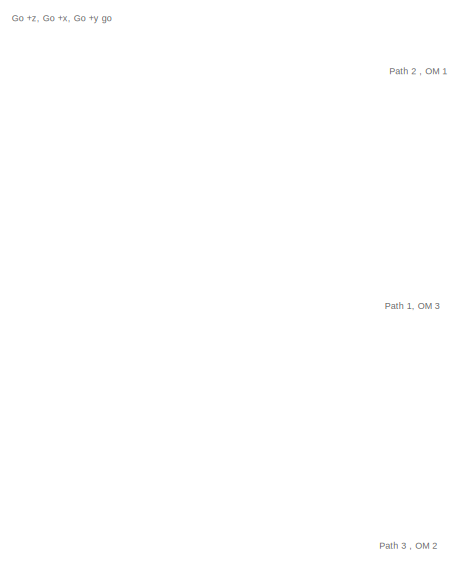
[diagram: root canvas - part 1/3, top left region]
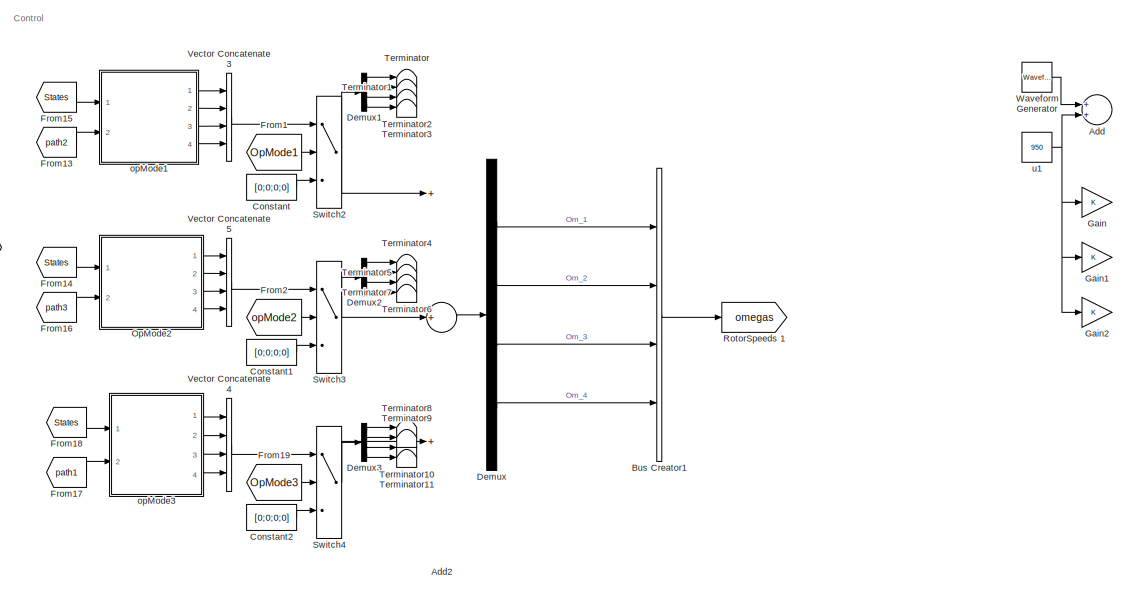
[diagram: root canvas - part 2/3, middle right region]
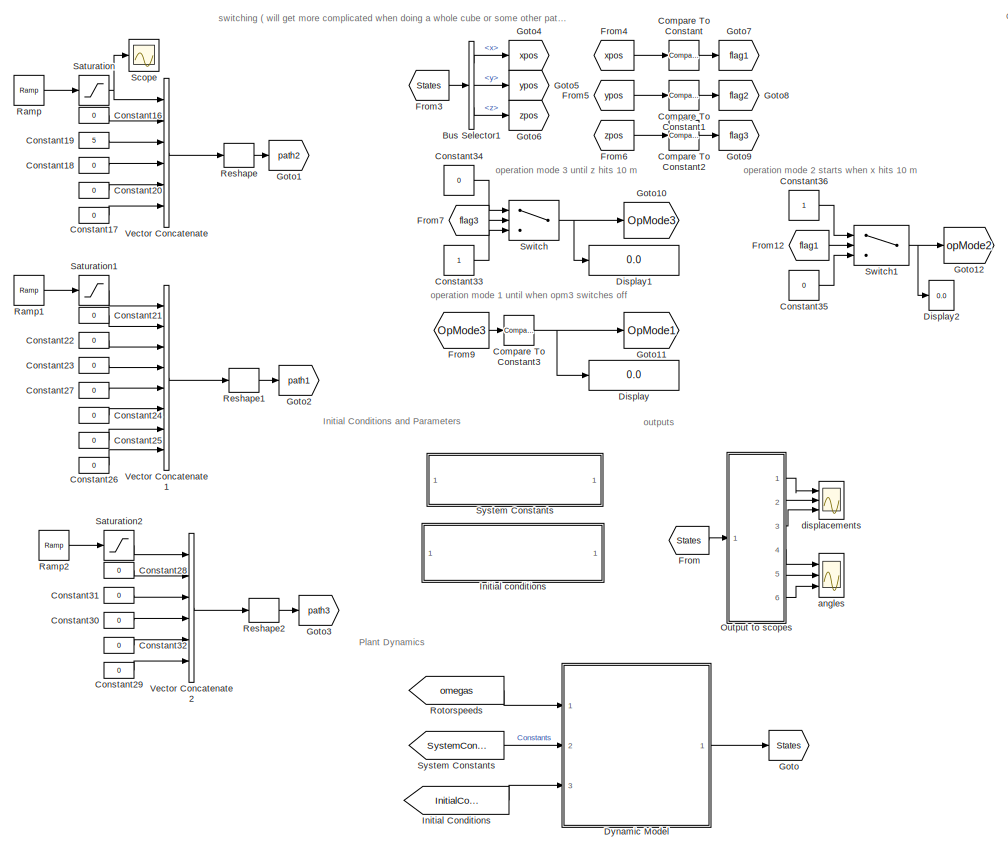
[diagram: root canvas - part 3/3, center side, full height]
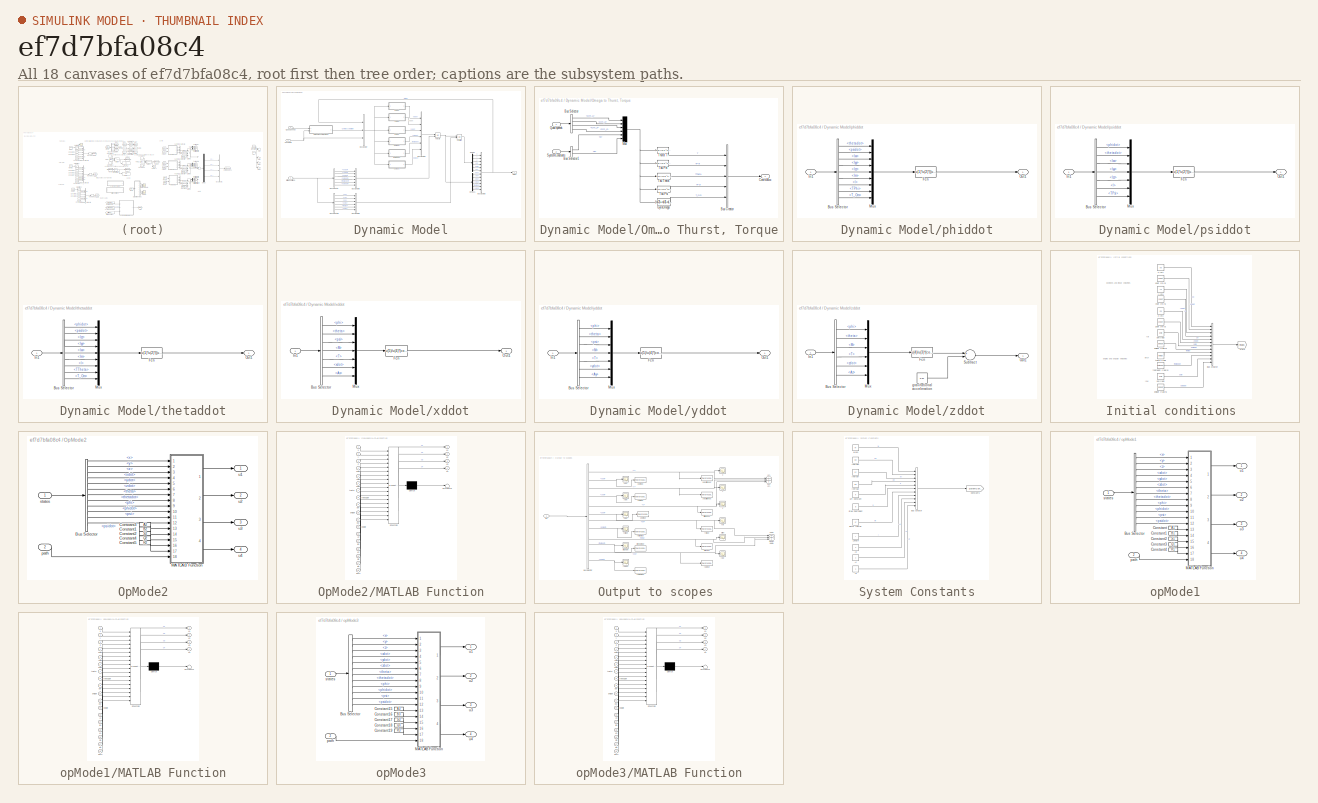
[diagram: thumbnail index - all 18 canvases of the model, root first then tree order]
MODEL slx_ef7d7bfa08c4
KIND model
CONFIG AbsTol = auto
CONFIG EnableMultiTasking = off
CONFIG FixedStep = auto
CONFIG MaxStep = auto
CONFIG MinStep = auto
CONFIG RelTol = 1e-3
CONFIG SampleTimeConstraint = Unconstrained
CONFIG Solver = VariableStepAuto
CONFIG SolverName = VariableStepAuto
CONFIG StartTime = 0.0
CONFIG StopTime = 100
BLOCK [Sum] Add
  Commented = on
  InputSameDT = off
  OutDataTypeStr = Inherit: Inherit via internal rule
  Ports = [2, 1]
  SaturateOnIntegerOverflow = off
BLOCK [Sum] Add2
  InputSameDT = off
  Inputs = +++
  OutDataTypeStr = Inherit: Inherit via internal rule
  Ports = [3, 1]
  SaturateOnIntegerOverflow = off
BLOCK [BusCreator] Bus Creator1
  DisplayOption = bar
  InheritFromInputs = on
  Inputs = 4
  Ports = [4, 1]
BLOCK [BusSelector] Bus Selector1
  OutputAsBus = off
  OutputSignals = x,y,z
  Ports = [1, 3]
BLOCK [Reference] Compare To Constant  REF=simulink/Logic and Bit
Operations/Compare
To Constant
  Ports = [1, 1]
  SourceBlock = simulink/Logic and Bit\nOperations/Compare\nTo Constant
  SourceProductBaseCode = SL
  SourceProductName = Simulink
  SourceType = Compare To Constant
BLOCK [Reference] Compare To Constant1  REF=simulink/Logic and Bit
Operations/Compare
To Constant
  Ports = [1, 1]
  SourceBlock = simulink/Logic and Bit\nOperations/Compare\nTo Constant
  SourceProductBaseCode = SL
  SourceProductName = Simulink
  SourceType = Compare To Constant
BLOCK [Reference] Compare To Constant2  REF=simulink/Logic and Bit
Operations/Compare
To Constant
  Ports = [1, 1]
  SourceBlock = simulink/Logic and Bit\nOperations/Compare\nTo Constant
  SourceProductBaseCode = SL
  SourceProductName = Simulink
  SourceType = Compare To Constant
BLOCK [Reference] Compare To Constant3  REF=simulink/Logic and Bit
Operations/Compare
To Constant
  Ports = [1, 1]
  SourceBlock = simulink/Logic and Bit\nOperations/Compare\nTo Constant
  SourceProductBaseCode = SL
  SourceProductName = Simulink
  SourceType = Compare To Constant
BLOCK [Constant] Constant
  Value = [0;0;0;0]
BLOCK [Constant] Constant1
  Value = [0;0;0;0]
BLOCK [Constant] Constant16
  Value = 0
BLOCK [Constant] Constant17
  Value = 0
BLOCK [Constant] Constant18
  Value = 0
BLOCK [Constant] Constant19
  Value = 5
BLOCK [Constant] Constant2
  Value = [0;0;0;0]
BLOCK [Constant] Constant20
  Value = 0
BLOCK [Constant] Constant21
  Value = 0
BLOCK [Constant] Constant22
  Value = 0
BLOCK [Constant] Constant23
  Value = 0
BLOCK [Constant] Constant24
  Value = 0
BLOCK [Constant] Constant25
  Value = 0
BLOCK [Constant] Constant26
  Value = 0
BLOCK [Constant] Constant27
  Value = 0
BLOCK [Constant] Constant28
  Value = 0
BLOCK [Constant] Constant29
  Value = 0
BLOCK [Constant] Constant30
  Value = 0
BLOCK [Constant] Constant31
  Value = 0
BLOCK [Constant] Constant32
  Value = 0
BLOCK [Constant] Constant33
BLOCK [Constant] Constant34
  Value = 0
BLOCK [Constant] Constant35
  Value = 0
BLOCK [Constant] Constant36
BLOCK [Demux] Demux
  DisplayOption = bar
  Ports = [1, 4]
BLOCK [Demux] Demux1
  DisplayOption = bar
  Ports = [1, 4]
BLOCK [Demux] Demux2
  DisplayOption = bar
  Ports = [1, 4]
BLOCK [Demux] Demux3
  DisplayOption = bar
  Ports = [1, 4]
BLOCK [Display] Display
  Decimation = 1
  Ports = [1]
BLOCK [Display] Display1
  Decimation = 1
  Ports = [1]
BLOCK [Display] Display2
  Decimation = 1
  Ports = [1]
BLOCK [SubSystem] Dynamic Model
  Ports = [3, 1]
  RequestExecContextInheritance = off
BLOCK [BusCreator] Dynamic Model/Bus Creator
  DisplayOption = bar
  InheritFromInputs = on
  Inputs = 3
  Ports = [3, 1]
BLOCK [BusCreator] Dynamic Model/Bus Creator3
  DisplayOption = bar
  InheritFromInputs = on
  Inputs = 12
  Ports = [12, 1]
BLOCK [BusCreator] Dynamic Model/Bus Creator4
  DisplayOption = bar
  InheritFromInputs = on
  Inputs = 6
  Ports = [6, 1]
BLOCK [BusCreator] Dynamic Model/Bus Creator5
  DisplayOption = bar
  InheritFromInputs = on
  Inputs = 6
  Ports = [6, 1]
BLOCK [BusCreator] Dynamic Model/Bus Creator6
  DisplayOption = bar
  InheritFromInputs = on
  Inputs = 6
  Ports = [6, 1]
BLOCK [BusSelector] Dynamic Model/Bus Selector
  OutputAsBus = off
  OutputSignals = x0dot,y0dot,z0dot,phi0dot,theta0dot,psi0dot
  Ports = [1, 6]
BLOCK [BusSelector] Dynamic Model/Bus Selector1
  OutputAsBus = off
  OutputSignals = x0,y0,z0,phi0,theta0,psi0
  Ports = [1, 6]
BLOCK [Inport] Dynamic Model/Constants
  IconDisplay = Port number
  Port = 2
BLOCK [Demux] Dynamic Model/Demux
  DisplayOption = bar
  Outputs = 6
  Ports = [1, 6]
BLOCK [Demux] Dynamic Model/Demux1
  DisplayOption = bar
  Outputs = 6
  Ports = [1, 6]
BLOCK [Inport] Dynamic Model/Initial Conditions 
  IconDisplay = Port number
  Port = 3
BLOCK [SubSystem] Dynamic Model/Omega to Thurst, Torque
  Ports = [2, 1]
  RequestExecContextInheritance = off
BLOCK [BusCreator] Dynamic Model/Omega to Thurst, Torque/Bus Creator
  DisplayOption = bar
  InheritFromInputs = on
  Inputs = 5
  Ports = [5, 1]
BLOCK [BusSelector] Dynamic Model/Omega to Thurst, Torque/Bus Selector
  OutputAsBus = off
  OutputSignals = Om_1,Om_2,Om_3,Om_4
  Ports = [1, 4]
BLOCK [BusSelector] Dynamic Model/Omega to Thurst, Torque/Bus Selector1
  OutputAsBus = off
  OutputSignals = k,b
  Ports = [1, 2]
BLOCK [Outport] Dynamic Model/Omega to Thurst, Torque/ControlAcc
  IconDisplay = Port number
BLOCK [Fcn] Dynamic Model/Omega to Thurst, Torque/GyroOmega 
  Expr = (u(2)+u(4)-u(1)-u(3))
BLOCK [Mux] Dynamic Model/Omega to Thurst, Torque/Mux
  DisplayOption = bar
  Inputs = 6
  Ports = [6, 1]
BLOCK [Inport] Dynamic Model/Omega to Thurst, Torque/Quad speeds 
  IconDisplay = Port number
BLOCK [Inport] Dynamic Model/Omega to Thurst, Torque/SystemConstants
  IconDisplay = Port number
  Port = 2
BLOCK [Fcn] Dynamic Model/Omega to Thurst, Torque/Tau Phi
  Expr = u(5)*(u(4)^2-u(2)^2)
BLOCK [Fcn] Dynamic Model/Omega to Thurst, Torque/Tau Psi
  Expr = u(6)*(u(2)^2+u(4)^2-u(1)^2-u(3)^2)
BLOCK [Fcn] Dynamic Model/Omega to Thurst, Torque/Tau Theta 
  Expr = u(5)*(u(3)^2-u(1)^2)
BLOCK [Fcn] Dynamic Model/Omega to Thurst, Torque/Thurst T
  Expr = u(5)*(u(1)^2+u(2)^2+u(3)^2+u(4)^2)
BLOCK [Integrator] Dynamic Model/Position
  InitialConditionSource = external
  Ports = [2, 1]
BLOCK [Inport] Dynamic Model/Quad Speeds 
  IconDisplay = Port number
BLOCK [Outport] Dynamic Model/States
  IconDisplay = Port number
BLOCK [Integrator] Dynamic Model/Velocity
  InitialConditionSource = external
  Ports = [2, 1]
BLOCK [SubSystem] Dynamic Model/phiddot
  Ports = [1, 1]
  RequestExecContextInheritance = off
BLOCK [BusSelector] Dynamic Model/phiddot/Bus Selector
  OutputAsBus = off
  OutputSignals = States.thetadot,States.psidot,Constants.Ixx,Constants.Iyy,Constants.Izz,Constants.Im,Constants.l,ControlAcceleration.TPhi,ControlAcceleration.T_Om
  Ports = [1, 9]
BLOCK [Fcn] Dynamic Model/phiddot/Fcn
  Expr = u(1)*u(2)*((u(4)-u(5))/u(3))-(u(6)*u(1)*u(9)/u(3))+(u(7)*u(8)/u(3))
BLOCK [Inport] Dynamic Model/phiddot/In1
  IconDisplay = Port number
BLOCK [Mux] Dynamic Model/phiddot/Mux
  DisplayOption = bar
  Inputs = 9
  Ports = [9, 1]
BLOCK [Outport] Dynamic Model/phiddot/Out1
  IconDisplay = Port number
BLOCK [SubSystem] Dynamic Model/psiddot
  Ports = [1, 1]
  RequestExecContextInheritance = off
BLOCK [BusSelector] Dynamic Model/psiddot/Bus Selector
  OutputAsBus = off
  OutputSignals = States.phidot,States.thetadot,Constants.Ixx,Constants.Iyy,Constants.Izz,Constants.l,ControlAcceleration.TPsi
  Ports = [1, 7]
BLOCK [Fcn] Dynamic Model/psiddot/Fcn
  Expr = u(1)*u(2)*((u(3)-u(4))/u(5))+(u(6)*u(7)/u(5))
BLOCK [Inport] Dynamic Model/psiddot/In1
  IconDisplay = Port number
BLOCK [Mux] Dynamic Model/psiddot/Mux
  DisplayOption = bar
  Inputs = 7
  Ports = [7, 1]
BLOCK [Outport] Dynamic Model/psiddot/Out1
  IconDisplay = Port number
BLOCK [SubSystem] Dynamic Model/thetaddot
  Ports = [1, 1]
  RequestExecContextInheritance = off
BLOCK [BusSelector] Dynamic Model/thetaddot/Bus Selector
  OutputAsBus = off
  OutputSignals = States.phidot,States.psidot,Constants.Iyy,Constants.Izz,Constants.Ixx,Constants.Im,Constants.l,ControlAcceleration.TTheta,ControlAcceleration.T_Om
  Ports = [1, 9]
BLOCK [Fcn] Dynamic Model/thetaddot/Fcn
  Expr = u(1)*u(2)*((u(4)-u(5))/u(3))+(u(6)*u(1)*u(9)/u(3))+(u(7)*u(8)/u(3))
BLOCK [Inport] Dynamic Model/thetaddot/In1
  IconDisplay = Port number
BLOCK [Mux] Dynamic Model/thetaddot/Mux
  DisplayOption = bar
  Inputs = 9
  Ports = [9, 1]
BLOCK [Outport] Dynamic Model/thetaddot/Out1
  IconDisplay = Port number
BLOCK [SubSystem] Dynamic Model/xddot
  Ports = [1, 1]
  RequestExecContextInheritance = off
BLOCK [BusSelector] Dynamic Model/xddot/Bus Selector
  OutputAsBus = off
  OutputSignals = States.phi,States.theta,States.psi,Constants.M,ControlAcceleration.T,States.xdot,Constants.Ax
  Ports = [1, 7]
BLOCK [Fcn] Dynamic Model/xddot/Fcn
  Expr = u(5)/u(4)*(cos(u(1))*sin(u(2))*cos(u(3))+sin(u(1))*sin(u(3)))-(u(6)*u(7))
BLOCK [Inport] Dynamic Model/xddot/In1
  IconDisplay = Port number
BLOCK [Mux] Dynamic Model/xddot/Mux
  DisplayOption = bar
  Inputs = 7
  Ports = [7, 1]
BLOCK [Outport] Dynamic Model/xddot/Out1
  IconDisplay = Port number
BLOCK [SubSystem] Dynamic Model/yddot
  Ports = [1, 1]
  RequestExecContextInheritance = off
BLOCK [BusSelector] Dynamic Model/yddot/Bus Selector
  OutputAsBus = off
  OutputSignals = States.phi,States.theta,States.psi,Constants.M,ControlAcceleration.T,States.ydot,Constants.Ay
  Ports = [1, 7]
BLOCK [Fcn] Dynamic Model/yddot/Fcn
  Expr = u(5)/u(4)*(cos(u(1))*sin(u(2))*sin(u(3))-sin(u(1))*cos(u(3)))-(u(6)*u(7))
BLOCK [Inport] Dynamic Model/yddot/In1
  IconDisplay = Port number
BLOCK [Mux] Dynamic Model/yddot/Mux
  DisplayOption = bar
  Inputs = 7
  Ports = [7, 1]
BLOCK [Outport] Dynamic Model/yddot/Out1
  IconDisplay = Port number
BLOCK [SubSystem] Dynamic Model/zddot
  Ports = [1, 1]
  RequestExecContextInheritance = off
BLOCK [BusSelector] Dynamic Model/zddot/Bus Selector
  OutputAsBus = off
  OutputSignals = States.phi,States.theta,Constants.M,ControlAcceleration.T,States.zdot,Constants.Az
  Ports = [1, 6]
BLOCK [Fcn] Dynamic Model/zddot/Fcn
  Expr = u(4)/u(3)*(cos(u(1))*cos(u(2)))-(u(5)*u(6))
BLOCK [Inport] Dynamic Model/zddot/In1
  IconDisplay = Port number
BLOCK [Mux] Dynamic Model/zddot/Mux
  DisplayOption = bar
  Inputs = 6
  Ports = [6, 1]
BLOCK [Outport] Dynamic Model/zddot/Out1
  IconDisplay = Port number
BLOCK [Sum] Dynamic Model/zddot/Subtract
  InputSameDT = off
  Inputs = +-
  OutDataTypeStr = Inherit: Inherit via internal rule
  Ports = [2, 1]
  SaturateOnIntegerOverflow = off
BLOCK [Constant] Dynamic Model/zddot/gravitational acceleration
  Value = 9.81
BLOCK [From] From
  GotoTag = States
BLOCK [From] From1
  GotoTag = OpMode1
BLOCK [From] From12
  GotoTag = flag1
BLOCK [From] From13
  GotoTag = path2
BLOCK [From] From14
  GotoTag = States
BLOCK [From] From15
  GotoTag = States
BLOCK [From] From16
  GotoTag = path3
BLOCK [From] From17
  GotoTag = path1
BLOCK [From] From18
  GotoTag = States
BLOCK [From] From19
  GotoTag = OpMode3
BLOCK [From] From2
  GotoTag = opMode2
BLOCK [From] From3
  GotoTag = States
BLOCK [From] From4
  GotoTag = xpos
BLOCK [From] From5
  GotoTag = ypos
BLOCK [From] From6
  GotoTag = zpos
BLOCK [From] From7
  GotoTag = flag3
BLOCK [From] From9
  GotoTag = OpMode3
BLOCK [Gain] Gain
  Commented = on
  OutDataTypeStr = Inherit: Inherit via internal rule
  ParamDataTypeStr = Inherit: Inherit via internal rule
  SaturateOnIntegerOverflow = off
BLOCK [Gain] Gain1
  Commented = on
  OutDataTypeStr = Inherit: Inherit via internal rule
  ParamDataTypeStr = Inherit: Inherit via internal rule
  SaturateOnIntegerOverflow = off
BLOCK [Gain] Gain2
  Commented = on
  OutDataTypeStr = Inherit: Inherit via internal rule
  ParamDataTypeStr = Inherit: Inherit via internal rule
  SaturateOnIntegerOverflow = off
BLOCK [Goto] Goto
  GotoTag = States
BLOCK [Goto] Goto1
  GotoTag = path2
BLOCK [Goto] Goto10
  GotoTag = OpMode3
BLOCK [Goto] Goto11
  GotoTag = OpMode1
BLOCK [Goto] Goto12
  GotoTag = opMode2
BLOCK [Goto] Goto2
  GotoTag = path1
BLOCK [Goto] Goto3
  GotoTag = path3
BLOCK [Goto] Goto4
  GotoTag = xpos
BLOCK [Goto] Goto5
  GotoTag = ypos
BLOCK [Goto] Goto6
  GotoTag = zpos
BLOCK [Goto] Goto7
  GotoTag = flag1
BLOCK [Goto] Goto8
  GotoTag = flag2
BLOCK [Goto] Goto9
  GotoTag = flag3
BLOCK [From] Initial Conditions
  GotoTag = InitialConditions
  TagVisibility = global
BLOCK [SubSystem] Initial conditions 
  Ports = []
  RequestExecContextInheritance = off
BLOCK [BusCreator] Initial conditions /Bus Creator
  DisplayOption = bar
  InheritFromInputs = on
  Inputs = 12
  Ports = [12, 1]
BLOCK [Goto] Initial conditions /Goto
  GotoTag = InitialConditions
  TagVisibility = global
BLOCK [Constant] Initial conditions /phi [rad]
  Value = phi0
BLOCK [Constant] Initial conditions /phidot [rad//s]
  Value = phi0dot
BLOCK [Constant] Initial conditions /psi [rad]
  Value = psi0
BLOCK [Constant] Initial conditions /psidot [rad//s]
  Value = psi0dot
BLOCK [Constant] Initial conditions /theta [rad]
  Value = theta0
BLOCK [Constant] Initial conditions /thetadot [rad//s]
  Value = theta0dot
BLOCK [Constant] Initial conditions /x [m]
  Value = x0
BLOCK [Constant] Initial conditions /xdot [m//s]
  Value = x0dot
BLOCK [Constant] Initial conditions /y [m]
  Value = y0
BLOCK [Constant] Initial conditions /ydot [m//s]
  Value = y0dot
BLOCK [Constant] Initial conditions /z [m]
  Value = z0
BLOCK [Constant] Initial conditions /zdot [m//s]
  Value = z0dot
BLOCK [SubSystem] OpMode2
  Ports = [2, 4]
  RequestExecContextInheritance = off
  TreatAsAtomicUnit = on
BLOCK [BusSelector] OpMode2/Bus Selector
  OutputAsBus = off
  OutputSignals = x,y,z,xdot,ydot,zdot,theta,thetadot,phi,phidot,psi,psidot
  Ports = [1, 12]
BLOCK [Constant] OpMode2/Constant1
  Value = B2
BLOCK [Constant] OpMode2/Constant2
  Value = S2
BLOCK [Constant] OpMode2/Constant3
  Value = A2
BLOCK [Constant] OpMode2/Constant4
  Value = Q2
BLOCK [Constant] OpMode2/Constant5
  Value = R2
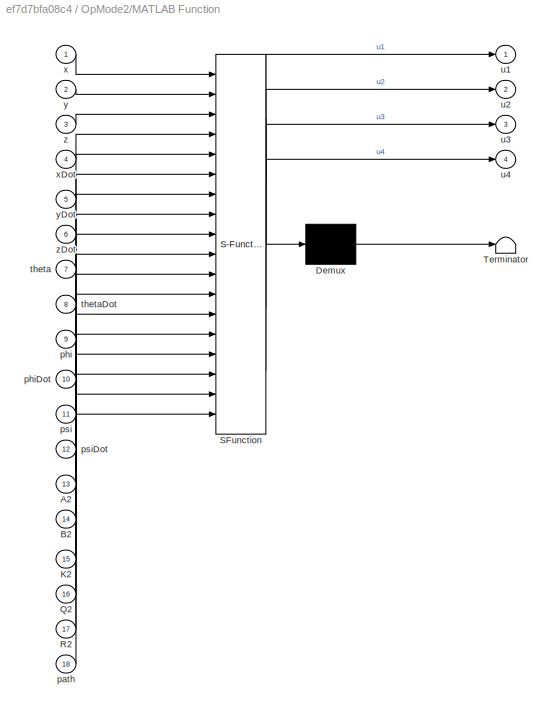
BLOCK [SubSystem] OpMode2/MATLAB Function
  ErrorFcn = Stateflow.Translate.translate
  PermitHierarchicalResolution = ExplicitOnly
  Ports = [18, 4]
  RequestExecContextInheritance = off
  SFBlockType = MATLAB Function
  TreatAsAtomicUnit = on
BLOCK [Demux] OpMode2/MATLAB Function/ Demux 
  Outputs = 1
  Ports = [1, 1]
BLOCK [S-Function] OpMode2/MATLAB Function/ SFunction 
  EnableBusSupport = on
  FunctionName = sf_sfun
  PortCounts = [18 5]
  Ports = [18, 5]
  SFcnIsStateOwnerBlock = off
  SFunctionDeploymentMode = off
  Tag = Stateflow S-Function Dynamic_model 1
BLOCK [Terminator] OpMode2/MATLAB Function/ Terminator 
BLOCK [Inport] OpMode2/MATLAB Function/A2
  IconDisplay = Port number
  Port = 13
BLOCK [Inport] OpMode2/MATLAB Function/B2
  IconDisplay = Port number
  Port = 14
BLOCK [Inport] OpMode2/MATLAB Function/K2
  IconDisplay = Port number
  Port = 15
BLOCK [Inport] OpMode2/MATLAB Function/Q2
  IconDisplay = Port number
  Port = 16
BLOCK [Inport] OpMode2/MATLAB Function/R2
  IconDisplay = Port number
  Port = 17
BLOCK [Inport] OpMode2/MATLAB Function/path
  IconDisplay = Port number
  Port = 18
BLOCK [Inport] OpMode2/MATLAB Function/phi
  IconDisplay = Port number
  Port = 9
BLOCK [Inport] OpMode2/MATLAB Function/phiDot
  IconDisplay = Port number
  Port = 10
BLOCK [Inport] OpMode2/MATLAB Function/psi
  IconDisplay = Port number
  Port = 11
BLOCK [Inport] OpMode2/MATLAB Function/psiDot
  IconDisplay = Port number
  Port = 12
BLOCK [Inport] OpMode2/MATLAB Function/theta
  IconDisplay = Port number
  Port = 7
BLOCK [Inport] OpMode2/MATLAB Function/thetaDot
  IconDisplay = Port number
  Port = 8
BLOCK [Outport] OpMode2/MATLAB Function/u1
  IconDisplay = Port number
BLOCK [Outport] OpMode2/MATLAB Function/u2
  IconDisplay = Port number
  Port = 2
BLOCK [Outport] OpMode2/MATLAB Function/u3
  IconDisplay = Port number
  Port = 3
BLOCK [Outport] OpMode2/MATLAB Function/u4
  IconDisplay = Port number
  Port = 4
BLOCK [Inport] OpMode2/MATLAB Function/x
  IconDisplay = Port number
BLOCK [Inport] OpMode2/MATLAB Function/xDot
  IconDisplay = Port number
  Port = 4
BLOCK [Inport] OpMode2/MATLAB Function/y
  IconDisplay = Port number
  Port = 2
BLOCK [Inport] OpMode2/MATLAB Function/yDot
  IconDisplay = Port number
  Port = 5
BLOCK [Inport] OpMode2/MATLAB Function/z
  IconDisplay = Port number
  Port = 3
BLOCK [Inport] OpMode2/MATLAB Function/zDot
  IconDisplay = Port number
  Port = 6
BLOCK [Inport] OpMode2/path
  IconDisplay = Port number
  Port = 2
BLOCK [Inport] OpMode2/states
  IconDisplay = Port number
BLOCK [Outport] OpMode2/u1
  IconDisplay = Port number
BLOCK [Outport] OpMode2/u2
  IconDisplay = Port number
  Port = 2
BLOCK [Outport] OpMode2/u3 
  IconDisplay = Port number
  Port = 3
BLOCK [Outport] OpMode2/u4
  IconDisplay = Port number
  Port = 4
BLOCK [SubSystem] Output to scopes 
  Ports = [1, 6]
  RequestExecContextInheritance = off
BLOCK [Outport] Output to scopes /<phi>
  IconDisplay = Port number
  Port = 4
BLOCK [Outport] Output to scopes /<psi>
  IconDisplay = Port number
  Port = 6
BLOCK [Outport] Output to scopes /<theta>
  IconDisplay = Port number
  Port = 5
BLOCK [Outport] Output to scopes /<x>
  IconDisplay = Port number
BLOCK [Outport] Output to scopes /<y>
  IconDisplay = Port number
  Port = 2
BLOCK [Outport] Output to scopes /<z>
  IconDisplay = Port number
  Port = 3
BLOCK [BusSelector] Output to scopes /Bus Selector
  OutputAsBus = off
  OutputSignals = x,xdot,y,ydot,z,zdot,phi,phidot,theta,thetadot,psi,psidot
  Ports = [1, 12]
BLOCK [Inport] Output to scopes /In1
  IconDisplay = Port number
BLOCK [ToWorkspace] Output to scopes /altitude out
  MaxDataPoints = inf
  Ports = [1]
  SampleTime = -1
  VariableName = z
BLOCK [Scope] Output to scopes /pitch
  Floating = off
  NumInputPorts = 1
  Ports = [1]
  ScopeSpecificationString = Simulink.scopes.TimeScopeBlockCfg('CurrentConfiguration', extmgr.ConfigurationSet(extmgr.Configuration('Core','General UI',true),extmgr.Configuration('Core','Source UI',true),extmgr.Configuration('Sources','WiredSimulink',true,'DataLoggingVariableName','ScopeData1','DataLoggingSaveFormat','StructureWithTime','DataLoggingDecimation','1','DataLoggingDecimateData',true),extmgr.Configuration('Visuals'...<+1656ch>
BLOCK [ToWorkspace] Output to scopes /pitch dot out
  MaxDataPoints = inf
  Ports = [1]
  SampleTime = -1
  VariableName = dotpitch
BLOCK [ToWorkspace] Output to scopes /pitch out
  MaxDataPoints = inf
  Ports = [1]
  SampleTime = -1
  VariableName = pitch
BLOCK [Scope] Output to scopes /pitchdot
  Floating = off
  NumInputPorts = 1
  Ports = [1]
  ScopeSpecificationString = Simulink.scopes.TimeScopeBlockCfg('CurrentConfiguration', extmgr.ConfigurationSet(extmgr.Configuration('Core','General UI',true),extmgr.Configuration('Core','Source UI',true),extmgr.Configuration('Sources','WiredSimulink',true,'DataLoggingVariableName','ScopeData4','DataLoggingSaveFormat','StructureWithTime','DataLoggingDecimation','1','DataLoggingDecimateData',true),extmgr.Configuration('Visuals'...<+1607ch>
BLOCK [Scope] Output to scopes /roll
  Floating = off
  NumInputPorts = 1
  Ports = [1]
  ScopeSpecificationString = Simulink.scopes.TimeScopeBlockCfg('CurrentConfiguration', extmgr.ConfigurationSet(extmgr.Configuration('Core','General UI',true),extmgr.Configuration('Core','Source UI',true),extmgr.Configuration('Sources','WiredSimulink',true,'DataLoggingSaveFormat','StructureWithTime','DataLoggingDecimation','1','DataLoggingDecimateData',true),extmgr.Configuration('Visuals','Time Domain',true,'SerializedDisplays...<+1624ch>
BLOCK [ToWorkspace] Output to scopes /roll dot out
  MaxDataPoints = inf
  Ports = [1]
  SampleTime = -1
  VariableName = dotroll
BLOCK [ToWorkspace] Output to scopes /roll out
  MaxDataPoints = inf
  Ports = [1]
  SampleTime = -1
  VariableName = roll
BLOCK [Scope] Output to scopes /rolldot
  Floating = off
  NumInputPorts = 1
  Ports = [1]
  ScopeSpecificationString = Simulink.scopes.TimeScopeBlockCfg('CurrentConfiguration', extmgr.ConfigurationSet(extmgr.Configuration('Core','General UI',true),extmgr.Configuration('Core','Source UI',true),extmgr.Configuration('Sources','WiredSimulink',true,'DataLoggingVariableName','ScopeData5','DataLoggingSaveFormat','StructureWithTime','DataLoggingDecimation','1','DataLoggingDecimateData',true),extmgr.Configuration('Visuals'...<+1654ch>
BLOCK [Scope] Output to scopes /x
  Floating = off
  NumInputPorts = 1
  Ports = [1]
  ScopeSpecificationString = Simulink.scopes.TimeScopeBlockCfg('CurrentConfiguration', extmgr.ConfigurationSet(extmgr.Configuration('Core','General UI',true),extmgr.Configuration('Core','Source UI',true),extmgr.Configuration('Sources','WiredSimulink',true,'DataLoggingVariableName','ScopeData6','DataLoggingSaveFormat','StructureWithTime','DataLoggingDecimation','1','DataLoggingDecimateData',true),extmgr.Configuration('Visuals'...<+1696ch>
BLOCK [ToWorkspace] Output to scopes /x position out
  MaxDataPoints = inf
  Ports = [1]
  SampleTime = -1
  VariableName = x
BLOCK [Scope] Output to scopes /xdot
  Floating = off
  NumInputPorts = 1
  Ports = [1]
  ScopeSpecificationString = Simulink.scopes.TimeScopeBlockCfg('CurrentConfiguration', extmgr.ConfigurationSet(extmgr.Configuration('Core','General UI',true),extmgr.Configuration('Core','Source UI',true),extmgr.Configuration('Sources','WiredSimulink',true,'DataLoggingVariableName','ScopeData7','DataLoggingSaveFormat','StructureWithTime','DataLoggingDecimation','1','DataLoggingDecimateData',true),extmgr.Configuration('Visuals'...<+1677ch>
BLOCK [ToWorkspace] Output to scopes /xdot out
  MaxDataPoints = inf
  Ports = [1]
  SampleTime = -1
  VariableName = xdot
BLOCK [Scope] Output to scopes /y
  Floating = off
  NumInputPorts = 1
  Ports = [1]
  ScopeSpecificationString = Simulink.scopes.TimeScopeBlockCfg('CurrentConfiguration', extmgr.ConfigurationSet(extmgr.Configuration('Core','General UI',true),extmgr.Configuration('Core','Source UI',true),extmgr.Configuration('Sources','WiredSimulink',true,'DataLoggingVariableName','ScopeData8','DataLoggingSaveFormat','StructureWithTime','DataLoggingDecimation','1','DataLoggingDecimateData',true),extmgr.Configuration('Visuals'...<+1681ch>
BLOCK [ToWorkspace] Output to scopes /y position out
  MaxDataPoints = inf
  Ports = [1]
  SampleTime = -1
  VariableName = y
BLOCK [Scope] Output to scopes /yaw
  Floating = off
  NumInputPorts = 1
  Ports = [1]
  ScopeSpecificationString = Simulink.scopes.TimeScopeBlockCfg('CurrentConfiguration', extmgr.ConfigurationSet(extmgr.Configuration('Core','General UI',true),extmgr.Configuration('Core','Source UI',true),extmgr.Configuration('Sources','WiredSimulink',true,'DataLoggingVariableName','ScopeData2','DataLoggingSaveFormat','StructureWithTime','DataLoggingDecimation','1','DataLoggingDecimateData',true),extmgr.Configuration('Visuals'...<+1656ch>
BLOCK [ToWorkspace] Output to scopes /yaw dot out
  MaxDataPoints = inf
  Ports = [1]
  SampleTime = -1
  VariableName = dotyaw
BLOCK [ToWorkspace] Output to scopes /yaw out
  MaxDataPoints = inf
  Ports = [1]
  SampleTime = -1
  VariableName = yaw
BLOCK [Scope] Output to scopes /yawdot
  Floating = off
  NumInputPorts = 1
  Ports = [1]
  ScopeSpecificationString = Simulink.scopes.TimeScopeBlockCfg('CurrentConfiguration', extmgr.ConfigurationSet(extmgr.Configuration('Core','General UI',true),extmgr.Configuration('Core','Source UI',true),extmgr.Configuration('Sources','WiredSimulink',true,'DataLoggingVariableName','ScopeData9','DataLoggingSaveFormat','StructureWithTime','DataLoggingDecimation','1','DataLoggingDecimateData',true),extmgr.Configuration('Visuals'...<+1653ch>
BLOCK [Scope] Output to scopes /ydot
  Floating = off
  NumInputPorts = 1
  Ports = [1]
  ScopeSpecificationString = Simulink.scopes.TimeScopeBlockCfg('CurrentConfiguration', extmgr.ConfigurationSet(extmgr.Configuration('Core','General UI',true),extmgr.Configuration('Core','Source UI',true),extmgr.Configuration('Sources','WiredSimulink',true,'DataLoggingVariableName','ScopeData10','DataLoggingSaveFormat','StructureWithTime','DataLoggingDecimation','1','DataLoggingDecimateData',true),extmgr.Configuration('Visuals...<+1691ch>
BLOCK [ToWorkspace] Output to scopes /ydot out
  MaxDataPoints = inf
  Ports = [1]
  SampleTime = -1
  VariableName = ydot
BLOCK [Scope] Output to scopes /z
  Floating = off
  NumInputPorts = 1
  Ports = [1]
  ScopeSpecificationString = Simulink.scopes.TimeScopeBlockCfg('CurrentConfiguration', extmgr.ConfigurationSet(extmgr.Configuration('Core','General UI',true),extmgr.Configuration('Core','Source UI',true),extmgr.Configuration('Sources','WiredSimulink',true,'DataLoggingVariableName','ScopeData11','DataLoggingSaveFormat','StructureWithTime','DataLoggingDecimation','1','DataLoggingDecimateData',true),extmgr.Configuration('Visuals...<+1676ch>
BLOCK [Scope] Output to scopes /zdot
  Floating = off
  NumInputPorts = 1
  Ports = [1]
  ScopeSpecificationString = Simulink.scopes.TimeScopeBlockCfg('CurrentConfiguration', extmgr.ConfigurationSet(extmgr.Configuration('Core','General UI',true),extmgr.Configuration('Core','Source UI',true),extmgr.Configuration('Sources','WiredSimulink',true,'DataLoggingVariableName','ScopeData12','DataLoggingSaveFormat','StructureWithTime','DataLoggingDecimation','1','DataLoggingDecimateData',true),extmgr.Configuration('Visuals...<+1688ch>
BLOCK [ToWorkspace] Output to scopes /zdot out
  MaxDataPoints = inf
  Ports = [1]
  SampleTime = -1
  VariableName = zdot
BLOCK [Reference] Ramp  REF=simulink/Sources/Ramp
  Ports = [0, 1]
  SourceBlock = simulink/Sources/Ramp
  SourceProductBaseCode = SL
  SourceProductName = Simulink
  SourceType = Ramp
BLOCK [Reference] Ramp1  REF=simulink/Sources/Ramp
  Ports = [0, 1]
  SourceBlock = simulink/Sources/Ramp
  SourceProductBaseCode = SL
  SourceProductName = Simulink
  SourceType = Ramp
BLOCK [Reference] Ramp2  REF=simulink/Sources/Ramp
  Ports = [0, 1]
  SourceBlock = simulink/Sources/Ramp
  SourceProductBaseCode = SL
  SourceProductName = Simulink
  SourceType = Ramp
BLOCK [Reshape] Reshape
  OutputDimensionality = Column vector (2-D)
  Ports = [1, 1]
BLOCK [Reshape] Reshape1
  OutputDimensionality = Column vector (2-D)
  Ports = [1, 1]
BLOCK [Reshape] Reshape2
  OutputDimensionality = Column vector (2-D)
  Ports = [1, 1]
BLOCK [Goto] RotorSpeeds 1
  GotoTag = omegas
BLOCK [From] Rotorspeeds 
  GotoTag = omegas
BLOCK [Saturate] Saturation
  InputPortMap = u0
  LowerLimit = 0
  Ports = [1, 1]
  UpperLimit = 10
BLOCK [Saturate] Saturation1
  InputPortMap = u0
  LowerLimit = 0
  Ports = [1, 1]
  UpperLimit = 10
BLOCK [Saturate] Saturation2
  InputPortMap = u0
  LowerLimit = 0
  Ports = [1, 1]
  UpperLimit = 10
BLOCK [Scope] Scope
  Floating = off
  NumInputPorts = 1
  Ports = [1]
  ScopeSpecificationString = Simulink.scopes.TimeScopeBlockCfg('CurrentConfiguration', extmgr.ConfigurationSet(extmgr.Configuration('Core','General UI',true),extmgr.Configuration('Core','Source UI',true),extmgr.Configuration('Sources','WiredSimulink',true,'DataLoggingVariableName','ScopeData1'),extmgr.Configuration('Visuals','Time Domain',true,'SerializedDisplays',{struct('MinYLimReal','4.375','MaxYLimReal','10.625','YLabelRe...<+1355ch>
BLOCK [Switch] Switch
  Criteria = u2 > Threshold
  InputSameDT = off
  SaturateOnIntegerOverflow = off
BLOCK [Switch] Switch1
  Criteria = u2 > Threshold
  InputSameDT = off
  SaturateOnIntegerOverflow = off
BLOCK [Switch] Switch2
  Criteria = u2 > Threshold
  InputSameDT = off
  SaturateOnIntegerOverflow = off
BLOCK [Switch] Switch3
  Criteria = u2 > Threshold
  InputSameDT = off
  SaturateOnIntegerOverflow = off
BLOCK [Switch] Switch4
  Criteria = u2 > Threshold
  InputSameDT = off
  SaturateOnIntegerOverflow = off
BLOCK [SubSystem] System Constants
  Ports = []
  RequestExecContextInheritance = off
BLOCK [From] System Constants 
  GotoTag = SystemConstants
  TagVisibility = global
BLOCK [Constant] System Constants/ Mass
  Value = m
BLOCK [Constant] System Constants/Ax
BLOCK [Constant] System Constants/Ay
BLOCK [Constant] System Constants/Az
BLOCK [BusCreator] System Constants/Bus Creator
  DisplayOption = bar
  InheritFromInputs = on
  Inputs = 11
  Ports = [11, 1]
BLOCK [Goto] System Constants/Constants 
  GotoTag = SystemConstants
  TagVisibility = global
BLOCK [Constant] System Constants/Drag Coefficient
  Value = b
BLOCK [Constant] System Constants/InertiaX
  Value = Ixx
BLOCK [Constant] System Constants/InertiaY
  Value = Iyy
BLOCK [Constant] System Constants/InertiaZ
  Value = Izz
BLOCK [Constant] System Constants/Length
  Value = l
BLOCK [Constant] System Constants/Lift Constant
  Value = k
BLOCK [Constant] System Constants/Rotor Inertia
  Value = Jr
BLOCK [Terminator] Terminator
BLOCK [Terminator] Terminator1
BLOCK [Terminator] Terminator10
BLOCK [Terminator] Terminator11
BLOCK [Terminator] Terminator2
BLOCK [Terminator] Terminator3
BLOCK [Terminator] Terminator4
BLOCK [Terminator] Terminator5
BLOCK [Terminator] Terminator6
BLOCK [Terminator] Terminator7
BLOCK [Terminator] Terminator8
BLOCK [Terminator] Terminator9
BLOCK [Concatenate] Vector Concatenate
  NumInputs = 6
  Ports = [6, 1]
BLOCK [Concatenate] Vector Concatenate1
  NumInputs = 8
  Ports = [8, 1]
BLOCK [Concatenate] Vector Concatenate2
  NumInputs = 6
  Ports = [6, 1]
BLOCK [Concatenate] Vector Concatenate3
  NumInputs = 4
  Ports = [4, 1]
BLOCK [Concatenate] Vector Concatenate4
  NumInputs = 4
  Ports = [4, 1]
BLOCK [Concatenate] Vector Concatenate5
  NumInputs = 4
  Ports = [4, 1]
BLOCK [Reference] Waveform Generator  REF=simulink/Sources/Waveform
Generator
  Commented = on
  Ports = [0, 1]
  SourceBlock = simulink/Sources/Waveform\nGenerator
  SourceProductBaseCode = SL
  SourceProductName = Simulink
  SourceType = WaveformGenerator
BLOCK [Scope] angles
  Floating = off
  NumInputPorts = 3
  Ports = [3]
  ScopeSpecificationString = Simulink.scopes.TimeScopeBlockCfg('CurrentConfiguration', extmgr.ConfigurationSet(extmgr.Configuration('Core','General UI',true),extmgr.Configuration('Core','Source UI',true),extmgr.Configuration('Sources','WiredSimulink',true,'DataLoggingVariableName','ScopeData13','DataLoggingSaveFormat','StructureWithTime','DataLoggingDecimation','1','DataLoggingDecimateData',true),extmgr.Configuration('Visuals...<+3108ch>
BLOCK [Scope] displacements
  Floating = off
  NumInputPorts = 3
  Ports = [3]
  ScopeSpecificationString = Simulink.scopes.TimeScopeBlockCfg('CurrentConfiguration', extmgr.ConfigurationSet(extmgr.Configuration('Core','General UI',true),extmgr.Configuration('Core','Source UI',true),extmgr.Configuration('Sources','WiredSimulink',true,'DataLoggingVariableName','ScopeData19','DataLoggingSaveFormat','StructureWithTime','DataLoggingDecimation','1','DataLoggingDecimateData',true),extmgr.Configuration('Visuals...<+3084ch>
BLOCK [SubSystem] opMode1
  Ports = [2, 4]
  RequestExecContextInheritance = off
  TreatAsAtomicUnit = on
BLOCK [BusSelector] opMode1/Bus Selector
  OutputAsBus = off
  OutputSignals = x,y,z,xdot,ydot,zdot,theta,thetadot,phi,phidot,psi,psidot
  Ports = [1, 12]
BLOCK [Constant] opMode1/Constant
  Value = A1
BLOCK [Constant] opMode1/Constant1
  Value = B1
BLOCK [Constant] opMode1/Constant2
  Value = S1
BLOCK [Constant] opMode1/Constant3
  Value = Q1
BLOCK [Constant] opMode1/Constant4
  Value = R1
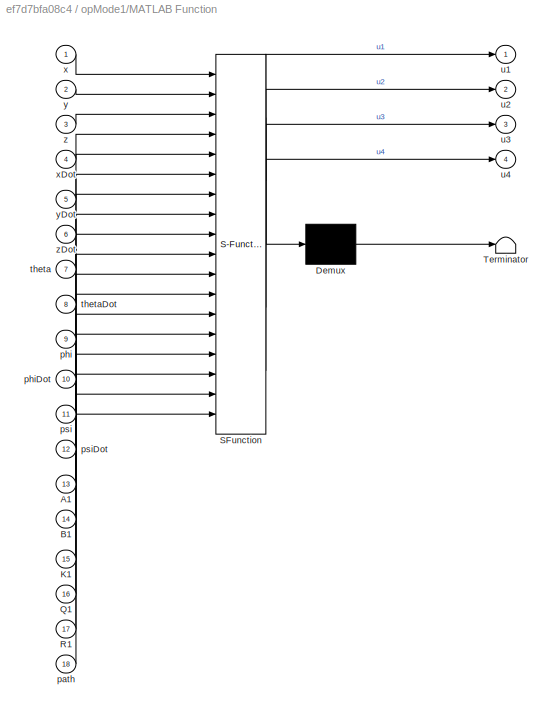
BLOCK [SubSystem] opMode1/MATLAB Function
  ErrorFcn = Stateflow.Translate.translate
  PermitHierarchicalResolution = ExplicitOnly
  Ports = [18, 4]
  RequestExecContextInheritance = off
  SFBlockType = MATLAB Function
  TreatAsAtomicUnit = on
BLOCK [Demux] opMode1/MATLAB Function/ Demux 
  Outputs = 1
  Ports = [1, 1]
BLOCK [S-Function] opMode1/MATLAB Function/ SFunction 
  EnableBusSupport = on
  FunctionName = sf_sfun
  PortCounts = [18 5]
  Ports = [18, 5]
  SFcnIsStateOwnerBlock = off
  SFunctionDeploymentMode = off
  Tag = Stateflow S-Function Dynamic_model 3
BLOCK [Terminator] opMode1/MATLAB Function/ Terminator 
BLOCK [Inport] opMode1/MATLAB Function/A1
  IconDisplay = Port number
  Port = 13
BLOCK [Inport] opMode1/MATLAB Function/B1
  IconDisplay = Port number
  Port = 14
BLOCK [Inport] opMode1/MATLAB Function/K1
  IconDisplay = Port number
  Port = 15
BLOCK [Inport] opMode1/MATLAB Function/Q1
  IconDisplay = Port number
  Port = 16
BLOCK [Inport] opMode1/MATLAB Function/R1
  IconDisplay = Port number
  Port = 17
BLOCK [Inport] opMode1/MATLAB Function/path
  IconDisplay = Port number
  Port = 18
BLOCK [Inport] opMode1/MATLAB Function/phi
  IconDisplay = Port number
  Port = 9
BLOCK [Inport] opMode1/MATLAB Function/phiDot
  IconDisplay = Port number
  Port = 10
BLOCK [Inport] opMode1/MATLAB Function/psi
  IconDisplay = Port number
  Port = 11
BLOCK [Inport] opMode1/MATLAB Function/psiDot
  IconDisplay = Port number
  Port = 12
BLOCK [Inport] opMode1/MATLAB Function/theta
  IconDisplay = Port number
  Port = 7
BLOCK [Inport] opMode1/MATLAB Function/thetaDot
  IconDisplay = Port number
  Port = 8
BLOCK [Outport] opMode1/MATLAB Function/u1
  IconDisplay = Port number
BLOCK [Outport] opMode1/MATLAB Function/u2
  IconDisplay = Port number
  Port = 2
BLOCK [Outport] opMode1/MATLAB Function/u3
  IconDisplay = Port number
  Port = 3
BLOCK [Outport] opMode1/MATLAB Function/u4
  IconDisplay = Port number
  Port = 4
BLOCK [Inport] opMode1/MATLAB Function/x
  IconDisplay = Port number
BLOCK [Inport] opMode1/MATLAB Function/xDot
  IconDisplay = Port number
  Port = 4
BLOCK [Inport] opMode1/MATLAB Function/y
  IconDisplay = Port number
  Port = 2
BLOCK [Inport] opMode1/MATLAB Function/yDot
  IconDisplay = Port number
  Port = 5
BLOCK [Inport] opMode1/MATLAB Function/z
  IconDisplay = Port number
  Port = 3
BLOCK [Inport] opMode1/MATLAB Function/zDot
  IconDisplay = Port number
  Port = 6
BLOCK [Inport] opMode1/path
  IconDisplay = Port number
  Port = 2
BLOCK [Inport] opMode1/states
  IconDisplay = Port number
BLOCK [Outport] opMode1/u1
  IconDisplay = Port number
BLOCK [Outport] opMode1/u2
  IconDisplay = Port number
  Port = 2
BLOCK [Outport] opMode1/u3 
  IconDisplay = Port number
  Port = 3
BLOCK [Outport] opMode1/u4
  IconDisplay = Port number
  Port = 4
BLOCK [SubSystem] opMode3
  Ports = [2, 4]
  RequestExecContextInheritance = off
  TreatAsAtomicUnit = on
BLOCK [BusSelector] opMode3/Bus Selector
  OutputAsBus = off
  OutputSignals = x,y,z,xdot,ydot,zdot,theta,thetadot,phi,phidot,psi,psidot
  Ports = [1, 12]
BLOCK [Constant] opMode3/Constant15
  Value = A3
BLOCK [Constant] opMode3/Constant16
  Value = B3
BLOCK [Constant] opMode3/Constant17
  Value = S3
BLOCK [Constant] opMode3/Constant18
  Value = Q3
BLOCK [Constant] opMode3/Constant19
  Value = R3
BLOCK [SubSystem] opMode3/MATLAB Function
  ErrorFcn = Stateflow.Translate.translate
  PermitHierarchicalResolution = ExplicitOnly
  Ports = [18, 4]
  RequestExecContextInheritance = off
  SFBlockType = MATLAB Function
  TreatAsAtomicUnit = on
BLOCK [Demux] opMode3/MATLAB Function/ Demux 
  Outputs = 1
  Ports = [1, 1]
BLOCK [S-Function] opMode3/MATLAB Function/ SFunction 
  EnableBusSupport = on
  FunctionName = sf_sfun
  PortCounts = [18 5]
  Ports = [18, 5]
  SFcnIsStateOwnerBlock = off
  SFunctionDeploymentMode = off
  Tag = Stateflow S-Function Dynamic_model 4
BLOCK [Terminator] opMode3/MATLAB Function/ Terminator 
BLOCK [Inport] opMode3/MATLAB Function/A3
  IconDisplay = Port number
  Port = 13
BLOCK [Inport] opMode3/MATLAB Function/B3
  IconDisplay = Port number
  Port = 14
BLOCK [Inport] opMode3/MATLAB Function/K3
  IconDisplay = Port number
  Port = 15
BLOCK [Inport] opMode3/MATLAB Function/Q3
  IconDisplay = Port number
  Port = 16
BLOCK [Inport] opMode3/MATLAB Function/R3
  IconDisplay = Port number
  Port = 17
BLOCK [Inport] opMode3/MATLAB Function/path
  IconDisplay = Port number
  Port = 18
BLOCK [Inport] opMode3/MATLAB Function/phi
  IconDisplay = Port number
  Port = 9
BLOCK [Inport] opMode3/MATLAB Function/phiDot
  IconDisplay = Port number
  Port = 10
BLOCK [Inport] opMode3/MATLAB Function/psi
  IconDisplay = Port number
  Port = 11
BLOCK [Inport] opMode3/MATLAB Function/psiDot
  IconDisplay = Port number
  Port = 12
BLOCK [Inport] opMode3/MATLAB Function/theta
  IconDisplay = Port number
  Port = 7
BLOCK [Inport] opMode3/MATLAB Function/thetaDot
  IconDisplay = Port number
  Port = 8
BLOCK [Outport] opMode3/MATLAB Function/u1
  IconDisplay = Port number
BLOCK [Outport] opMode3/MATLAB Function/u2
  IconDisplay = Port number
  Port = 2
BLOCK [Outport] opMode3/MATLAB Function/u3
  IconDisplay = Port number
  Port = 3
BLOCK [Outport] opMode3/MATLAB Function/u4
  IconDisplay = Port number
  Port = 4
BLOCK [Inport] opMode3/MATLAB Function/x
  IconDisplay = Port number
BLOCK [Inport] opMode3/MATLAB Function/xDot
  IconDisplay = Port number
  Port = 4
BLOCK [Inport] opMode3/MATLAB Function/y
  IconDisplay = Port number
  Port = 2
BLOCK [Inport] opMode3/MATLAB Function/yDot
  IconDisplay = Port number
  Port = 5
BLOCK [Inport] opMode3/MATLAB Function/z
  IconDisplay = Port number
  Port = 3
BLOCK [Inport] opMode3/MATLAB Function/zDot
  IconDisplay = Port number
  Port = 6
BLOCK [Inport] opMode3/path
  IconDisplay = Port number
  Port = 2
BLOCK [Inport] opMode3/states
  IconDisplay = Port number
BLOCK [Outport] opMode3/u1
  IconDisplay = Port number
BLOCK [Outport] opMode3/u2
  IconDisplay = Port number
  Port = 2
BLOCK [Outport] opMode3/u3 
  IconDisplay = Port number
  Port = 3
BLOCK [Outport] opMode3/u4
  IconDisplay = Port number
  Port = 4
BLOCK [Constant] u1
  Commented = on
  Value = 950
ANNOTATION (root): Go +z, Go +x, Go +y go
ANNOTATION (root): Control
ANNOTATION (root): Initial Conditions and Parameters
ANNOTATION (root): Path 1, OM 3
ANNOTATION (root): Path 2 , OM 1
ANNOTATION (root): Path 3 , OM 2
ANNOTATION (root): Plant Dynamics
ANNOTATION (root): operation mode 1 until when opm3 switches off
ANNOTATION (root): operation mode 2 starts when x hits 10 m
ANNOTATION (root): operation mode 3 until z hits 10 m
ANNOTATION (root): outputs
ANNOTATION (root): switching ( will get more complicated when doing a whole cube or some other path)
ANNOTATION Dynamic Model: yddot
ANNOTATION Initial conditions : angles and angular velocities
ANNOTATION Initial conditions : pitch
ANNOTATION Initial conditions : positions and linear velocities
ANNOTATION Initial conditions : roll
ANNOTATION Initial conditions : yaw
LINE Add2:1 -> Demux:1
LINE Bus Creator1:1 -> RotorSpeeds 1:1
LINE Bus Selector1:1 -> Goto4:1
LINE Bus Selector1:2 -> Goto5:1
LINE Bus Selector1:3 -> Goto6:1
LINE Compare To Constant1:1 -> Goto8:1
LINE Compare To Constant2:1 -> Goto9:1
NET Compare To Constant3:1 -> Display:1, Goto11:1
LINE Compare To Constant:1 -> Goto7:1
LINE Constant16:1 -> Vector Concatenate:2
LINE Constant17:1 -> Vector Concatenate:6
LINE Constant18:1 -> Vector Concatenate:4
LINE Constant19:1 -> Vector Concatenate:3
LINE Constant1:1 -> Switch3:3
LINE Constant20:1 -> Vector Concatenate:5
LINE Constant21:1 -> Vector Concatenate1:2
LINE Constant22:1 -> Vector Concatenate1:3
LINE Constant23:1 -> Vector Concatenate1:4
LINE Constant24:1 -> Vector Concatenate1:6
LINE Constant25:1 -> Vector Concatenate1:7
LINE Constant26:1 -> Vector Concatenate1:8
LINE Constant27:1 -> Vector Concatenate1:5
LINE Constant28:1 -> Vector Concatenate2:2
LINE Constant29:1 -> Vector Concatenate2:6
LINE Constant2:1 -> Switch4:3
LINE Constant30:1 -> Vector Concatenate2:4
LINE Constant31:1 -> Vector Concatenate2:3
LINE Constant32:1 -> Vector Concatenate2:5
LINE Constant33:1 -> Switch:3
LINE Constant34:1 -> Switch:1
LINE Constant35:1 -> Switch1:3
LINE Constant36:1 -> Switch1:1
LINE Constant:1 -> Switch2:3
LINE Demux1:1 -> Terminator:1
LINE Demux1:2 -> Terminator1:1
LINE Demux1:3 -> Terminator2:1
LINE Demux1:4 -> Terminator3:1
LINE Demux2:1 -> Terminator4:1
LINE Demux2:2 -> Terminator5:1
LINE Demux2:3 -> Terminator6:1
LINE Demux2:4 -> Terminator7:1
LINE Demux3:1 -> Terminator8:1
LINE Demux3:2 -> Terminator9:1
LINE Demux3:3 -> Terminator10:1
LINE Demux3:4 -> Terminator11:1
LINE Demux:1 -> Bus Creator1:1
LINE Demux:2 -> Bus Creator1:2
LINE Demux:3 -> Bus Creator1:3
LINE Demux:4 -> Bus Creator1:4
NET Dynamic Model/Bus Creator3:1 -> Dynamic Model/Bus Creator:1, Dynamic Model/States:1
LINE Dynamic Model/Bus Creator4:1 -> Dynamic Model/Velocity:1
LINE Dynamic Model/Bus Creator5:1 -> Dynamic Model/Velocity:2
LINE Dynamic Model/Bus Creator6:1 -> Dynamic Model/Position:2
NET Dynamic Model/Bus Creator:1 -> Dynamic Model/phiddot:1, Dynamic Model/psiddot:1, Dynamic Model/thetaddot:1, Dynamic Model/xddot:1, Dynamic Model/yddot:1, Dynamic Model/zddot:1
LINE Dynamic Model/Bus Selector1:1 -> Dynamic Model/Bus Creator6:1
LINE Dynamic Model/Bus Selector1:2 -> Dynamic Model/Bus Creator6:2
LINE Dynamic Model/Bus Selector1:3 -> Dynamic Model/Bus Creator6:3
LINE Dynamic Model/Bus Selector1:4 -> Dynamic Model/Bus Creator6:4
LINE Dynamic Model/Bus Selector1:5 -> Dynamic Model/Bus Creator6:5
LINE Dynamic Model/Bus Selector1:6 -> Dynamic Model/Bus Creator6:6
LINE Dynamic Model/Bus Selector:1 -> Dynamic Model/Bus Creator5:1
LINE Dynamic Model/Bus Selector:2 -> Dynamic Model/Bus Creator5:2
LINE Dynamic Model/Bus Selector:3 -> Dynamic Model/Bus Creator5:3
LINE Dynamic Model/Bus Selector:4 -> Dynamic Model/Bus Creator5:4
LINE Dynamic Model/Bus Selector:5 -> Dynamic Model/Bus Creator5:5
LINE Dynamic Model/Bus Selector:6 -> Dynamic Model/Bus Creator5:6
NET Dynamic Model/Constants:1 -> Dynamic Model/Bus Creator:3, Dynamic Model/Omega to Thurst, Torque:2
LINE Dynamic Model/Demux1:1 -> Dynamic Model/Bus Creator3:7
LINE Dynamic Model/Demux1:2 -> Dynamic Model/Bus Creator3:8
LINE Dynamic Model/Demux1:3 -> Dynamic Model/Bus Creator3:9
LINE Dynamic Model/Demux1:4 -> Dynamic Model/Bus Creator3:10
LINE Dynamic Model/Demux1:5 -> Dynamic Model/Bus Creator3:11
LINE Dynamic Model/Demux1:6 -> Dynamic Model/Bus Creator3:12
LINE Dynamic Model/Demux:1 -> Dynamic Model/Bus Creator3:1
LINE Dynamic Model/Demux:2 -> Dynamic Model/Bus Creator3:2
LINE Dynamic Model/Demux:3 -> Dynamic Model/Bus Creator3:3
LINE Dynamic Model/Demux:4 -> Dynamic Model/Bus Creator3:4
LINE Dynamic Model/Demux:5 -> Dynamic Model/Bus Creator3:5
LINE Dynamic Model/Demux:6 -> Dynamic Model/Bus Creator3:6
NET Dynamic Model/Initial Conditions :1 -> Dynamic Model/Bus Selector1:1, Dynamic Model/Bus Selector:1
LINE Dynamic Model/Omega to Thurst, Torque/Bus Creator:1 -> Dynamic Model/Omega to Thurst, Torque/ControlAcc:1
LINE Dynamic Model/Omega to Thurst, Torque/Bus Selector1:1 -> Dynamic Model/Omega to Thurst, Torque/Mux:5
LINE Dynamic Model/Omega to Thurst, Torque/Bus Selector1:2 -> Dynamic Model/Omega to Thurst, Torque/Mux:6
LINE Dynamic Model/Omega to Thurst, Torque/Bus Selector:1 -> Dynamic Model/Omega to Thurst, Torque/Mux:1
LINE Dynamic Model/Omega to Thurst, Torque/Bus Selector:2 -> Dynamic Model/Omega to Thurst, Torque/Mux:2
LINE Dynamic Model/Omega to Thurst, Torque/Bus Selector:3 -> Dynamic Model/Omega to Thurst, Torque/Mux:3
LINE Dynamic Model/Omega to Thurst, Torque/Bus Selector:4 -> Dynamic Model/Omega to Thurst, Torque/Mux:4
LINE Dynamic Model/Omega to Thurst, Torque/GyroOmega :1 -> Dynamic Model/Omega to Thurst, Torque/Bus Creator:5
NET Dynamic Model/Omega to Thurst, Torque/Mux:1 -> Dynamic Model/Omega to Thurst, Torque/GyroOmega :1, Dynamic Model/Omega to Thurst, Torque/Tau Phi:1, Dynamic Model/Omega to Thurst, Torque/Tau Psi:1, Dynamic Model/Omega to Thurst, Torque/Tau Theta :1, Dynamic Model/Omega to Thurst, Torque/Thurst T:1
LINE Dynamic Model/Omega to Thurst, Torque/Quad speeds :1 -> Dynamic Model/Omega to Thurst, Torque/Bus Selector:1
LINE Dynamic Model/Omega to Thurst, Torque/SystemConstants:1 -> Dynamic Model/Omega to Thurst, Torque/Bus Selector1:1
LINE Dynamic Model/Omega to Thurst, Torque/Tau Phi:1 -> Dynamic Model/Omega to Thurst, Torque/Bus Creator:2
LINE Dynamic Model/Omega to Thurst, Torque/Tau Psi:1 -> Dynamic Model/Omega to Thurst, Torque/Bus Creator:4
LINE Dynamic Model/Omega to Thurst, Torque/Tau Theta :1 -> Dynamic Model/Omega to Thurst, Torque/Bus Creator:3
LINE Dynamic Model/Omega to Thurst, Torque/Thurst T:1 -> Dynamic Model/Omega to Thurst, Torque/Bus Creator:1
LINE Dynamic Model/Omega to Thurst, Torque:1 -> Dynamic Model/Bus Creator:2
LINE Dynamic Model/Position:1 -> Dynamic Model/Demux:1
LINE Dynamic Model/Quad Speeds :1 -> Dynamic Model/Omega to Thurst, Torque:1
NET Dynamic Model/Velocity:1 -> Dynamic Model/Demux1:1, Dynamic Model/Position:1
LINE Dynamic Model/phiddot/Bus Selector:1 -> Dynamic Model/phiddot/Mux:1
LINE Dynamic Model/phiddot/Bus Selector:2 -> Dynamic Model/phiddot/Mux:2
LINE Dynamic Model/phiddot/Bus Selector:3 -> Dynamic Model/phiddot/Mux:3
LINE Dynamic Model/phiddot/Bus Selector:4 -> Dynamic Model/phiddot/Mux:4
LINE Dynamic Model/phiddot/Bus Selector:5 -> Dynamic Model/phiddot/Mux:5
LINE Dynamic Model/phiddot/Bus Selector:6 -> Dynamic Model/phiddot/Mux:6
LINE Dynamic Model/phiddot/Bus Selector:7 -> Dynamic Model/phiddot/Mux:7
LINE Dynamic Model/phiddot/Bus Selector:8 -> Dynamic Model/phiddot/Mux:8
LINE Dynamic Model/phiddot/Bus Selector:9 -> Dynamic Model/phiddot/Mux:9
LINE Dynamic Model/phiddot/Fcn:1 -> Dynamic Model/phiddot/Out1:1
LINE Dynamic Model/phiddot/In1:1 -> Dynamic Model/phiddot/Bus Selector:1
LINE Dynamic Model/phiddot/Mux:1 -> Dynamic Model/phiddot/Fcn:1
LINE Dynamic Model/phiddot:1 -> Dynamic Model/Bus Creator4:4
LINE Dynamic Model/psiddot/Bus Selector:1 -> Dynamic Model/psiddot/Mux:1
LINE Dynamic Model/psiddot/Bus Selector:2 -> Dynamic Model/psiddot/Mux:2
LINE Dynamic Model/psiddot/Bus Selector:3 -> Dynamic Model/psiddot/Mux:3
LINE Dynamic Model/psiddot/Bus Selector:4 -> Dynamic Model/psiddot/Mux:4
LINE Dynamic Model/psiddot/Bus Selector:5 -> Dynamic Model/psiddot/Mux:5
LINE Dynamic Model/psiddot/Bus Selector:6 -> Dynamic Model/psiddot/Mux:6
LINE Dynamic Model/psiddot/Bus Selector:7 -> Dynamic Model/psiddot/Mux:7
LINE Dynamic Model/psiddot/Fcn:1 -> Dynamic Model/psiddot/Out1:1
LINE Dynamic Model/psiddot/In1:1 -> Dynamic Model/psiddot/Bus Selector:1
LINE Dynamic Model/psiddot/Mux:1 -> Dynamic Model/psiddot/Fcn:1
LINE Dynamic Model/psiddot:1 -> Dynamic Model/Bus Creator4:6
LINE Dynamic Model/thetaddot/Bus Selector:1 -> Dynamic Model/thetaddot/Mux:1
LINE Dynamic Model/thetaddot/Bus Selector:2 -> Dynamic Model/thetaddot/Mux:2
LINE Dynamic Model/thetaddot/Bus Selector:3 -> Dynamic Model/thetaddot/Mux:4
LINE Dynamic Model/thetaddot/Bus Selector:4 -> Dynamic Model/thetaddot/Mux:3
LINE Dynamic Model/thetaddot/Bus Selector:5 -> Dynamic Model/thetaddot/Mux:5
LINE Dynamic Model/thetaddot/Bus Selector:6 -> Dynamic Model/thetaddot/Mux:6
LINE Dynamic Model/thetaddot/Bus Selector:7 -> Dynamic Model/thetaddot/Mux:7
LINE Dynamic Model/thetaddot/Bus Selector:8 -> Dynamic Model/thetaddot/Mux:8
LINE Dynamic Model/thetaddot/Bus Selector:9 -> Dynamic Model/thetaddot/Mux:9
LINE Dynamic Model/thetaddot/Fcn:1 -> Dynamic Model/thetaddot/Out1:1
LINE Dynamic Model/thetaddot/In1:1 -> Dynamic Model/thetaddot/Bus Selector:1
LINE Dynamic Model/thetaddot/Mux:1 -> Dynamic Model/thetaddot/Fcn:1
LINE Dynamic Model/thetaddot:1 -> Dynamic Model/Bus Creator4:5
LINE Dynamic Model/xddot/Bus Selector:1 -> Dynamic Model/xddot/Mux:1
LINE Dynamic Model/xddot/Bus Selector:2 -> Dynamic Model/xddot/Mux:2
LINE Dynamic Model/xddot/Bus Selector:3 -> Dynamic Model/xddot/Mux:3
LINE Dynamic Model/xddot/Bus Selector:4 -> Dynamic Model/xddot/Mux:4
LINE Dynamic Model/xddot/Bus Selector:5 -> Dynamic Model/xddot/Mux:5
LINE Dynamic Model/xddot/Bus Selector:6 -> Dynamic Model/xddot/Mux:6
LINE Dynamic Model/xddot/Bus Selector:7 -> Dynamic Model/xddot/Mux:7
LINE Dynamic Model/xddot/Fcn:1 -> Dynamic Model/xddot/Out1:1
LINE Dynamic Model/xddot/In1:1 -> Dynamic Model/xddot/Bus Selector:1
LINE Dynamic Model/xddot/Mux:1 -> Dynamic Model/xddot/Fcn:1
LINE Dynamic Model/xddot:1 -> Dynamic Model/Bus Creator4:1
LINE Dynamic Model/yddot/Bus Selector:1 -> Dynamic Model/yddot/Mux:1
LINE Dynamic Model/yddot/Bus Selector:2 -> Dynamic Model/yddot/Mux:2
LINE Dynamic Model/yddot/Bus Selector:3 -> Dynamic Model/yddot/Mux:3
LINE Dynamic Model/yddot/Bus Selector:4 -> Dynamic Model/yddot/Mux:4
LINE Dynamic Model/yddot/Bus Selector:5 -> Dynamic Model/yddot/Mux:5
LINE Dynamic Model/yddot/Bus Selector:6 -> Dynamic Model/yddot/Mux:6
LINE Dynamic Model/yddot/Bus Selector:7 -> Dynamic Model/yddot/Mux:7
LINE Dynamic Model/yddot/Fcn:1 -> Dynamic Model/yddot/Out1:1
LINE Dynamic Model/yddot/In1:1 -> Dynamic Model/yddot/Bus Selector:1
LINE Dynamic Model/yddot/Mux:1 -> Dynamic Model/yddot/Fcn:1
LINE Dynamic Model/yddot:1 -> Dynamic Model/Bus Creator4:2
LINE Dynamic Model/zddot/Bus Selector:1 -> Dynamic Model/zddot/Mux:1
LINE Dynamic Model/zddot/Bus Selector:2 -> Dynamic Model/zddot/Mux:2
LINE Dynamic Model/zddot/Bus Selector:3 -> Dynamic Model/zddot/Mux:3
LINE Dynamic Model/zddot/Bus Selector:4 -> Dynamic Model/zddot/Mux:4
LINE Dynamic Model/zddot/Bus Selector:5 -> Dynamic Model/zddot/Mux:5
LINE Dynamic Model/zddot/Bus Selector:6 -> Dynamic Model/zddot/Mux:6
LINE Dynamic Model/zddot/Fcn:1 -> Dynamic Model/zddot/Subtract:1
LINE Dynamic Model/zddot/In1:1 -> Dynamic Model/zddot/Bus Selector:1
LINE Dynamic Model/zddot/Mux:1 -> Dynamic Model/zddot/Fcn:1
LINE Dynamic Model/zddot/Subtract:1 -> Dynamic Model/zddot/Out1:1
LINE Dynamic Model/zddot/gravitational acceleration:1 -> Dynamic Model/zddot/Subtract:2
LINE Dynamic Model/zddot:1 -> Dynamic Model/Bus Creator4:3
LINE Dynamic Model:1 -> Goto:1
LINE From12:1 -> Switch1:2
LINE From13:1 -> opMode1:2
LINE From14:1 -> OpMode2:1
LINE From15:1 -> opMode1:1
LINE From16:1 -> OpMode2:2
LINE From17:1 -> opMode3:2
LINE From18:1 -> opMode3:1
LINE From19:1 -> Switch4:2
LINE From1:1 -> Switch2:2
LINE From2:1 -> Switch3:2
LINE From3:1 -> Bus Selector1:1
LINE From4:1 -> Compare To Constant:1
LINE From5:1 -> Compare To Constant1:1
LINE From6:1 -> Compare To Constant2:1
LINE From7:1 -> Switch:2
LINE From9:1 -> Compare To Constant3:1
LINE From:1 -> Output to scopes :1
LINE Initial Conditions:1 -> Dynamic Model:3
LINE Initial conditions /Bus Creator:1 -> Initial conditions /Goto:1
LINE Initial conditions /phi [rad]:1 -> Initial conditions /Bus Creator:7
LINE Initial conditions /phidot [rad//s]:1 -> Initial conditions /Bus Creator:8
LINE Initial conditions /psi [rad]:1 -> Initial conditions /Bus Creator:11
LINE Initial conditions /psidot [rad//s]:1 -> Initial conditions /Bus Creator:12
LINE Initial conditions /theta [rad]:1 -> Initial conditions /Bus Creator:9
LINE Initial conditions /thetadot [rad//s]:1 -> Initial conditions /Bus Creator:10
LINE Initial conditions /x [m]:1 -> Initial conditions /Bus Creator:1
LINE Initial conditions /xdot [m//s]:1 -> Initial conditions /Bus Creator:2
LINE Initial conditions /y [m]:1 -> Initial conditions /Bus Creator:3
LINE Initial conditions /ydot [m//s]:1 -> Initial conditions /Bus Creator:4
LINE Initial conditions /z [m]:1 -> Initial conditions /Bus Creator:5
LINE Initial conditions /zdot [m//s]:1 -> Initial conditions /Bus Creator:6
LINE OpMode2/Bus Selector:1 -> OpMode2/MATLAB Function:1
LINE OpMode2/Bus Selector:10 -> OpMode2/MATLAB Function:10
LINE OpMode2/Bus Selector:11 -> OpMode2/MATLAB Function:11
LINE OpMode2/Bus Selector:12 -> OpMode2/MATLAB Function:12
LINE OpMode2/Bus Selector:2 -> OpMode2/MATLAB Function:2
LINE OpMode2/Bus Selector:3 -> OpMode2/MATLAB Function:3
LINE OpMode2/Bus Selector:4 -> OpMode2/MATLAB Function:4
LINE OpMode2/Bus Selector:5 -> OpMode2/MATLAB Function:5
LINE OpMode2/Bus Selector:6 -> OpMode2/MATLAB Function:6
LINE OpMode2/Bus Selector:7 -> OpMode2/MATLAB Function:7
LINE OpMode2/Bus Selector:8 -> OpMode2/MATLAB Function:8
LINE OpMode2/Bus Selector:9 -> OpMode2/MATLAB Function:9
LINE OpMode2/Constant1:1 -> OpMode2/MATLAB Function:14
LINE OpMode2/Constant2:1 -> OpMode2/MATLAB Function:15
LINE OpMode2/Constant3:1 -> OpMode2/MATLAB Function:13
LINE OpMode2/Constant4:1 -> OpMode2/MATLAB Function:16
LINE OpMode2/Constant5:1 -> OpMode2/MATLAB Function:17
LINE OpMode2/MATLAB Function:1 -> OpMode2/u1:1
LINE OpMode2/MATLAB Function:2 -> OpMode2/u2:1
LINE OpMode2/MATLAB Function:3 -> OpMode2/u3 :1
LINE OpMode2/MATLAB Function:4 -> OpMode2/u4:1
LINE OpMode2/path:1 -> OpMode2/MATLAB Function:18
LINE OpMode2/states:1 -> OpMode2/Bus Selector:1
LINE OpMode2:1 -> Vector Concatenate5:1
LINE OpMode2:2 -> Vector Concatenate5:2
LINE OpMode2:3 -> Vector Concatenate5:3
LINE OpMode2:4 -> Vector Concatenate5:4
NET Output to scopes /Bus Selector:1 -> Output to scopes /<x>:1, Output to scopes /x position out:1, Output to scopes /x:1
NET Output to scopes /Bus Selector:10 -> Output to scopes /pitch dot out:1, Output to scopes /pitchdot:1
NET Output to scopes /Bus Selector:11 -> Output to scopes /<psi>:1, Output to scopes /yaw out:1, Output to scopes /yaw:1
NET Output to scopes /Bus Selector:12 -> Output to scopes /yaw dot out:1, Output to scopes /yawdot:1
NET Output to scopes /Bus Selector:2 -> Output to scopes /xdot out:1, Output to scopes /xdot:1
NET Output to scopes /Bus Selector:3 -> Output to scopes /<y>:1, Output to scopes /y position out:1, Output to scopes /y:1
NET Output to scopes /Bus Selector:4 -> Output to scopes /ydot out:1, Output to scopes /ydot:1
NET Output to scopes /Bus Selector:5 -> Output to scopes /<z>:1, Output to scopes /altitude out:1, Output to scopes /z:1
NET Output to scopes /Bus Selector:6 -> Output to scopes /zdot out:1, Output to scopes /zdot:1
NET Output to scopes /Bus Selector:7 -> Output to scopes /<phi>:1, Output to scopes /roll out:1, Output to scopes /roll:1
NET Output to scopes /Bus Selector:8 -> Output to scopes /roll dot out:1, Output to scopes /rolldot:1
NET Output to scopes /Bus Selector:9 -> Output to scopes /<theta>:1, Output to scopes /pitch out:1, Output to scopes /pitch:1
LINE Output to scopes /In1:1 -> Output to scopes /Bus Selector:1
LINE Output to scopes :1 -> displacements:1
LINE Output to scopes :2 -> displacements:2
LINE Output to scopes :3 -> displacements:3
LINE Output to scopes :4 -> angles:1
LINE Output to scopes :5 -> angles:2
LINE Output to scopes :6 -> angles:3
LINE Ramp1:1 -> Saturation1:1
LINE Ramp2:1 -> Saturation2:1
LINE Ramp:1 -> Saturation:1
LINE Reshape1:1 -> Goto2:1
LINE Reshape2:1 -> Goto3:1
LINE Reshape:1 -> Goto1:1
LINE Rotorspeeds :1 -> Dynamic Model:1
LINE Saturation1:1 -> Vector Concatenate1:1
LINE Saturation2:1 -> Vector Concatenate2:1
NET Saturation:1 -> Scope:1, Vector Concatenate:1
NET Switch1:1 -> Display2:1, Goto12:1
NET Switch2:1 -> Add2:1, Demux1:1
NET Switch3:1 -> Add2:2, Demux2:1
NET Switch4:1 -> Add2:3, Demux3:1
NET Switch:1 -> Display1:1, Goto10:1
LINE System Constants :1 -> Dynamic Model:2
LINE System Constants/ Mass:1 -> System Constants/Bus Creator:1
LINE System Constants/Ax:1 -> System Constants/Bus Creator:9
LINE System Constants/Ay:1 -> System Constants/Bus Creator:10
LINE System Constants/Az:1 -> System Constants/Bus Creator:11
LINE System Constants/Bus Creator:1 -> System Constants/Constants :1
LINE System Constants/Drag Coefficient:1 -> System Constants/Bus Creator:6
LINE System Constants/InertiaX:1 -> System Constants/Bus Creator:2
LINE System Constants/InertiaY:1 -> System Constants/Bus Creator:3
LINE System Constants/InertiaZ:1 -> System Constants/Bus Creator:4
LINE System Constants/Length:1 -> System Constants/Bus Creator:8
LINE System Constants/Lift Constant:1 -> System Constants/Bus Creator:5
LINE System Constants/Rotor Inertia:1 -> System Constants/Bus Creator:7
LINE Vector Concatenate1:1 -> Reshape1:1
LINE Vector Concatenate2:1 -> Reshape2:1
LINE Vector Concatenate3:1 -> Switch2:1
LINE Vector Concatenate4:1 -> Switch4:1
LINE Vector Concatenate5:1 -> Switch3:1
LINE Vector Concatenate:1 -> Reshape:1
LINE Waveform Generator:1 -> Add:1
LINE opMode1/Bus Selector:1 -> opMode1/MATLAB Function:1
LINE opMode1/Bus Selector:10 -> opMode1/MATLAB Function:10
LINE opMode1/Bus Selector:11 -> opMode1/MATLAB Function:11
LINE opMode1/Bus Selector:12 -> opMode1/MATLAB Function:12
LINE opMode1/Bus Selector:2 -> opMode1/MATLAB Function:2
LINE opMode1/Bus Selector:3 -> opMode1/MATLAB Function:3
LINE opMode1/Bus Selector:4 -> opMode1/MATLAB Function:4
LINE opMode1/Bus Selector:5 -> opMode1/MATLAB Function:5
LINE opMode1/Bus Selector:6 -> opMode1/MATLAB Function:6
LINE opMode1/Bus Selector:7 -> opMode1/MATLAB Function:7
LINE opMode1/Bus Selector:8 -> opMode1/MATLAB Function:8
LINE opMode1/Bus Selector:9 -> opMode1/MATLAB Function:9
LINE opMode1/Constant1:1 -> opMode1/MATLAB Function:14
LINE opMode1/Constant2:1 -> opMode1/MATLAB Function:15
LINE opMode1/Constant3:1 -> opMode1/MATLAB Function:16
LINE opMode1/Constant4:1 -> opMode1/MATLAB Function:17
LINE opMode1/Constant:1 -> opMode1/MATLAB Function:13
LINE opMode1/MATLAB Function:1 -> opMode1/u1:1
LINE opMode1/MATLAB Function:2 -> opMode1/u2:1
LINE opMode1/MATLAB Function:3 -> opMode1/u3 :1
LINE opMode1/MATLAB Function:4 -> opMode1/u4:1
LINE opMode1/path:1 -> opMode1/MATLAB Function:18
LINE opMode1/states:1 -> opMode1/Bus Selector:1
LINE opMode1:1 -> Vector Concatenate3:1
LINE opMode1:2 -> Vector Concatenate3:2
LINE opMode1:3 -> Vector Concatenate3:3
LINE opMode1:4 -> Vector Concatenate3:4
LINE opMode3/Bus Selector:1 -> opMode3/MATLAB Function:1
LINE opMode3/Bus Selector:10 -> opMode3/MATLAB Function:10
LINE opMode3/Bus Selector:11 -> opMode3/MATLAB Function:11
LINE opMode3/Bus Selector:12 -> opMode3/MATLAB Function:12
LINE opMode3/Bus Selector:2 -> opMode3/MATLAB Function:2
LINE opMode3/Bus Selector:3 -> opMode3/MATLAB Function:3
LINE opMode3/Bus Selector:4 -> opMode3/MATLAB Function:4
LINE opMode3/Bus Selector:5 -> opMode3/MATLAB Function:5
LINE opMode3/Bus Selector:6 -> opMode3/MATLAB Function:6
LINE opMode3/Bus Selector:7 -> opMode3/MATLAB Function:7
LINE opMode3/Bus Selector:8 -> opMode3/MATLAB Function:8
LINE opMode3/Bus Selector:9 -> opMode3/MATLAB Function:9
LINE opMode3/Constant15:1 -> opMode3/MATLAB Function:13
LINE opMode3/Constant16:1 -> opMode3/MATLAB Function:14
LINE opMode3/Constant17:1 -> opMode3/MATLAB Function:15
LINE opMode3/Constant18:1 -> opMode3/MATLAB Function:16
LINE opMode3/Constant19:1 -> opMode3/MATLAB Function:17
LINE opMode3/MATLAB Function:1 -> opMode3/u1:1
LINE opMode3/MATLAB Function:2 -> opMode3/u2:1
LINE opMode3/MATLAB Function:3 -> opMode3/u3 :1
LINE opMode3/MATLAB Function:4 -> opMode3/u4:1
LINE opMode3/path:1 -> opMode3/MATLAB Function:18
LINE opMode3/states:1 -> opMode3/Bus Selector:1
LINE opMode3:1 -> Vector Concatenate4:1
LINE opMode3:2 -> Vector Concatenate4:2
LINE opMode3:3 -> Vector Concatenate4:3
LINE opMode3:4 -> Vector Concatenate4:4
NET u1:1 -> Add:2, Gain1:1, Gain2:1, Gain:1
note: NET lines group one-source signal fan-out (src -> all destinations, sorted); 1:1 wires keep LINE
CHART OpMode2/MATLAB Function states=1 transitions=1
  STATE_LABEL 'eML_blk_kernel()'
  STATE_LABEL "SCRIPT:\nfunction [u1,u2,u3,u4] = fcn(x,y,z,xDot,yDot,zDot,theta,thetaDot,phi,phiDot,psi,psiDot,A2,B2,K2,Q2,R2,path)\nu1 = 0;\nu2 = 0; %initialize\nu3 = 0;\nu4 = 0;\n         % Lateral Flight\n        X = [ y,yDot,phi,phiDot,psi,psiDot ]';\n        s = inv(A2' - K2*B2*inv(R2)*B2')*Q2*path;  % solving for s\n        U =  -(inv(R2)*B2'*K2*X) - inv(R2)*B2'*s; % Results in a 2 by one\n        u2 = U(1);\n       ...<+23ch>"
CHART opMode1/MATLAB Function states=1 transitions=1
  STATE_LABEL 'eML_blk_kernel()'
  STATE_LABEL "SCRIPT:\nfunction [u1,u2,u3,u4] = fcn(x,y,z,xDot,yDot,zDot,theta,thetaDot,phi,phiDot,psi,psiDot,A1,B1,K1,Q1,R1,path)\nu1 = 0;\nu2 = 0; %initialize\nu3 = 0;\nu4 = 0;\n\n        % Forward Flight\n        X = [ x,xDot,z,zDot,theta,thetaDot ]';\n        s = inv(A1' - K1*B1*inv(R1)*B1')*Q1*path;  % solving for s\n        U =  -(inv(R1)*B1'*K1*X) - inv(R1)*B1'*s; % Results in a 2 by one\n        u1 = U(1);\n       ...<+25ch>"
CHART opMode3/MATLAB Function states=1 transitions=1
  STATE_LABEL 'eML_blk_kernel()'
  STATE_LABEL "SCRIPT:\nfunction [u1,u2,u3,u4] = fcn(x,y,z,xDot,yDot,zDot,theta,thetaDot,phi,phiDot,psi,psiDot,A3,B3,K3,Q3,R3,path)\nu1 = 0;\nu2 = 0; %initialize\nu3 = 0;\nu4 = 0;\n\n    \n%     Upward acceletation and hovering \n        X = [z, zDot, phi, phiDot, theta, thetaDot, psi, psiDot ]';\n        s = inv(A3' - K3*B3*inv(R3)*B3')*Q3*path;\n        U =  -(inv(R3)*B3'*K3*X) - inv(R3)*B3'*s; % Results in a 4 by one\n  ...<+79ch>"
